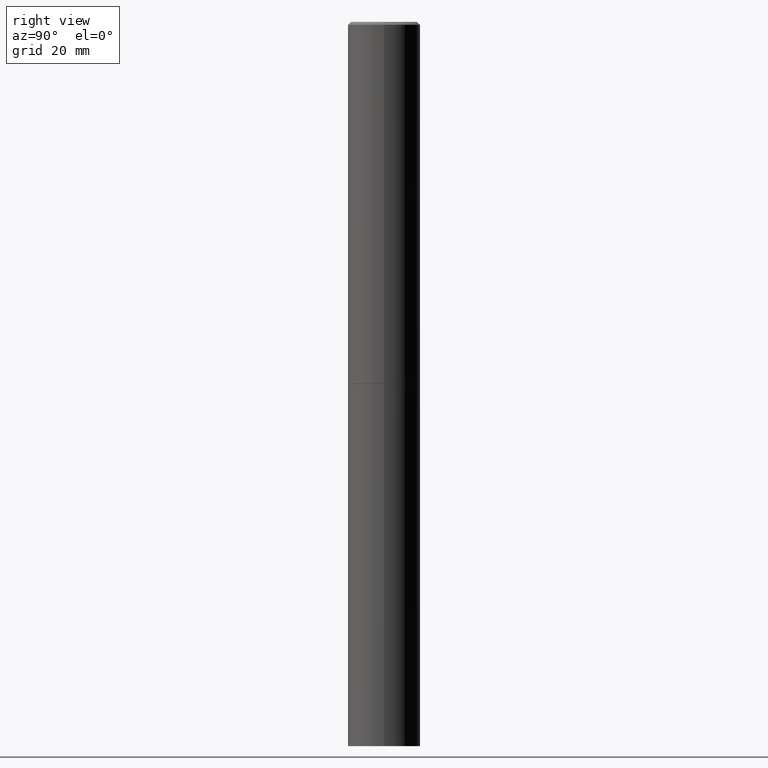
[diagram: clean part render]
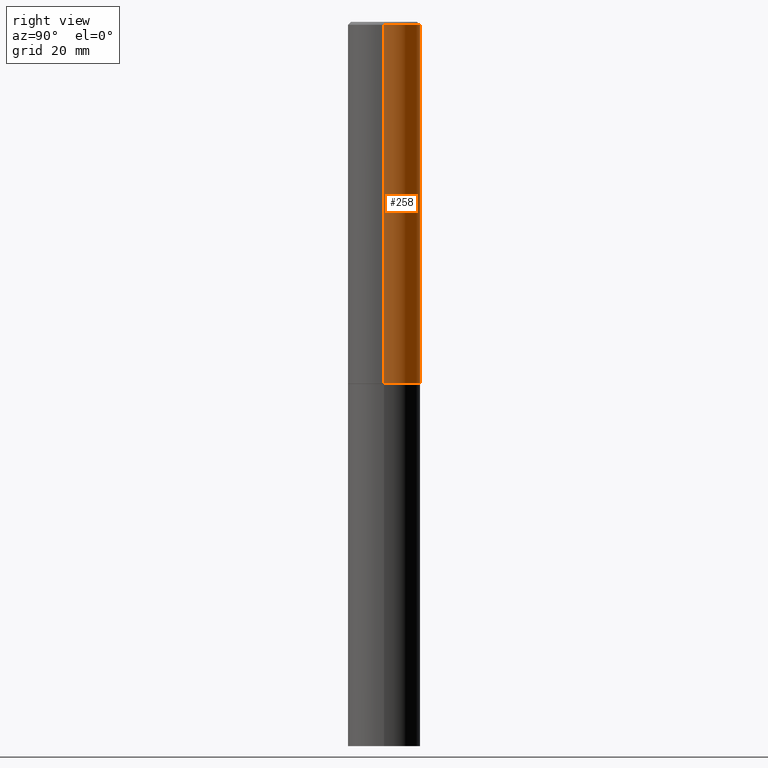
[diagram: same view with one face highlighted and labeled with its STEP entity id]
A machine part, right view. The second image highlights one B-rep face of the part: STEP entity #258.
In plain terms, the highlighted cylindrical surface (edge-blend (fillet) strip) has radius 6.35 mm, axis along (-0, 0, 1).
Its self-contained STEP definition (entity closure, byte-faithful):
#1 = LINE ( 'NONE', #81, #94 ) ;
#4 = CIRCLE ( 'NONE', #336, 0.2499999999999997224 ) ;
#11 = EDGE_CURVE ( 'NONE', #13, #213, #365, .T. ) ;
#12 = VERTEX_POINT ( 'NONE', #16 ) ;
#13 = VERTEX_POINT ( 'NONE', #22 ) ;
#16 = CARTESIAN_POINT ( 'NONE',  ( -0.2499999999999997224, 1.675911042644701605E-15, -0.02000000000000005593 ) ) ;
#22 = CARTESIAN_POINT ( 'NONE',  ( 0.2500000000000000000, -1.047095253519058861E-14, -2.499000000000000110 ) ) ;
#38 = VERTEX_POINT ( 'NONE', #331 ) ;
#55 = DIRECTION ( 'NONE',  ( 1.000000000000000000, -6.982962677686266711E-15, 4.876176775795935793E-29 ) ) ;
#56 = DIRECTION ( 'NONE',  ( -2.445468806185136597E-29, 3.491481338843145583E-15, 1.000000000000000000 ) ) ;
#57 = EDGE_CURVE ( 'NONE', #13, #38, #1, .T. ) ;
#61 = LINE ( 'NONE', #319, #256 ) ;
#78 = CARTESIAN_POINT ( 'NONE',  ( 6.111226546656657010E-29, -8.725211865769021935E-15, -2.499000000000000110 ) ) ;
#81 = CARTESIAN_POINT ( 'NONE',  ( 0.2499999999999998612, -1.745740669421565692E-15, 1.219044193948983248E-29 ) ) ;
#84 = CARTESIAN_POINT ( 'NONE',  ( 0.000000000000000000, 0.000000000000000000, 0.000000000000000000 ) ) ;
#94 = VECTOR ( 'NONE', #305, 39.37007874015748143 ) ;
#95 = EDGE_LOOP ( 'NONE', ( #198, #120, #165, #167 ) ) ;
#104 = CARTESIAN_POINT ( 'NONE',  ( -0.2499999999999999722, -2.621163906872689391E-15, -2.499000000000000110 ) ) ;
#107 = FACE_OUTER_BOUND ( 'NONE', #95, .T. ) ;
#120 = ORIENTED_EDGE ( 'NONE', *, *, #284, .T. ) ;
#165 = ORIENTED_EDGE ( 'NONE', *, *, #295, .F. ) ;
#167 = ORIENTED_EDGE ( 'NONE', *, *, #57, .F. ) ;
#171 = DIRECTION ( 'NONE',  ( -2.445468806185136877E-29, 3.491481338843145188E-15, 1.000000000000000000 ) ) ;
#186 = DIRECTION ( 'NONE',  ( -2.445468806185136597E-29, 3.491481338843145583E-15, 1.000000000000000000 ) ) ;
#198 = ORIENTED_EDGE ( 'NONE', *, *, #11, .T. ) ;
#199 = CYLINDRICAL_SURFACE ( 'NONE', #280, 0.2499999999999998612 ) ;
#200 = AXIS2_PLACEMENT_3D ( 'NONE', #78, #186, #301 ) ;
#208 = CARTESIAN_POINT ( 'NONE',  ( 4.890937612370287172E-31, -6.982962677686310098E-17, -0.02000000000000005593 ) ) ;
#213 = VERTEX_POINT ( 'NONE', #104 ) ;
#256 = VECTOR ( 'NONE', #171, 39.37007874015748143 ) ;
#258 = ADVANCED_FACE ( 'NONE', ( #107 ), #199, .T. ) ;
#280 = AXIS2_PLACEMENT_3D ( 'NONE', #84, #311, #55 ) ;
#284 = EDGE_CURVE ( 'NONE', #213, #12, #61, .T. ) ;
#295 = EDGE_CURVE ( 'NONE', #38, #12, #4, .T. ) ;
#301 = DIRECTION ( 'NONE',  ( 1.000000000000000000, -6.982962677686266711E-15, 0.000000000000000000 ) ) ;
#305 = DIRECTION ( 'NONE',  ( -2.445468806185136877E-29, 3.491481338843145188E-15, 1.000000000000000000 ) ) ;
#311 = DIRECTION ( 'NONE',  ( -2.445468806185136597E-29, 3.491481338843145583E-15, 1.000000000000000000 ) ) ;
#319 = CARTESIAN_POINT ( 'NONE',  ( -0.2499999999999998612, 1.776356839400249479E-15, -1.229733772563725745E-29 ) ) ;
#331 = CARTESIAN_POINT ( 'NONE',  ( 0.2499999999999997224, -1.784954126219744217E-15, -0.02000000000000005593 ) ) ;
#336 = AXIS2_PLACEMENT_3D ( 'NONE', #208, #56, #350 ) ;
#350 = DIRECTION ( 'NONE',  ( 1.000000000000000000, -6.982962677686266711E-15, 0.000000000000000000 ) ) ;
#365 = CIRCLE ( 'NONE', #200, 0.2500000000000000000 ) ;